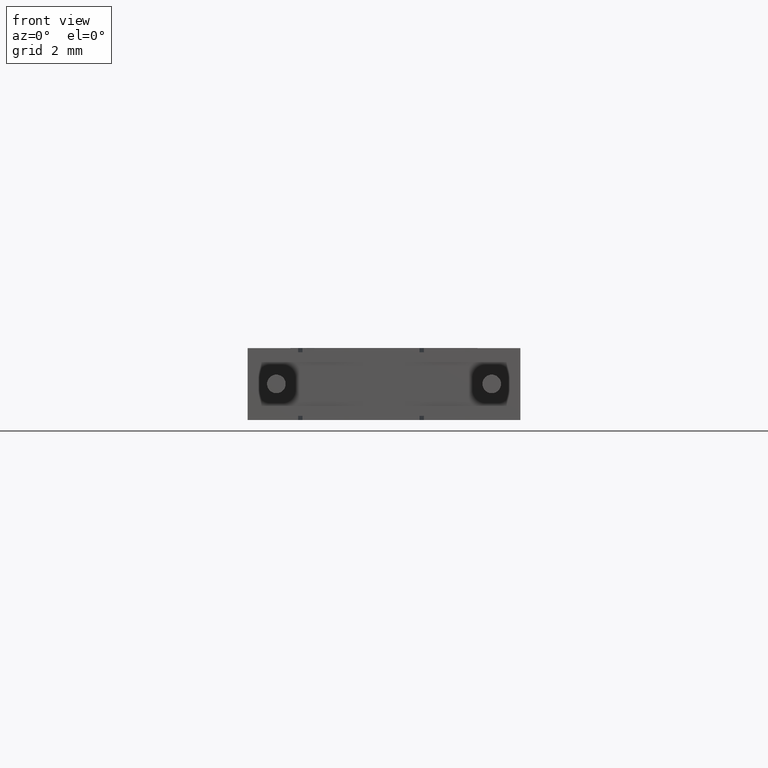
[diagram: clean part render]
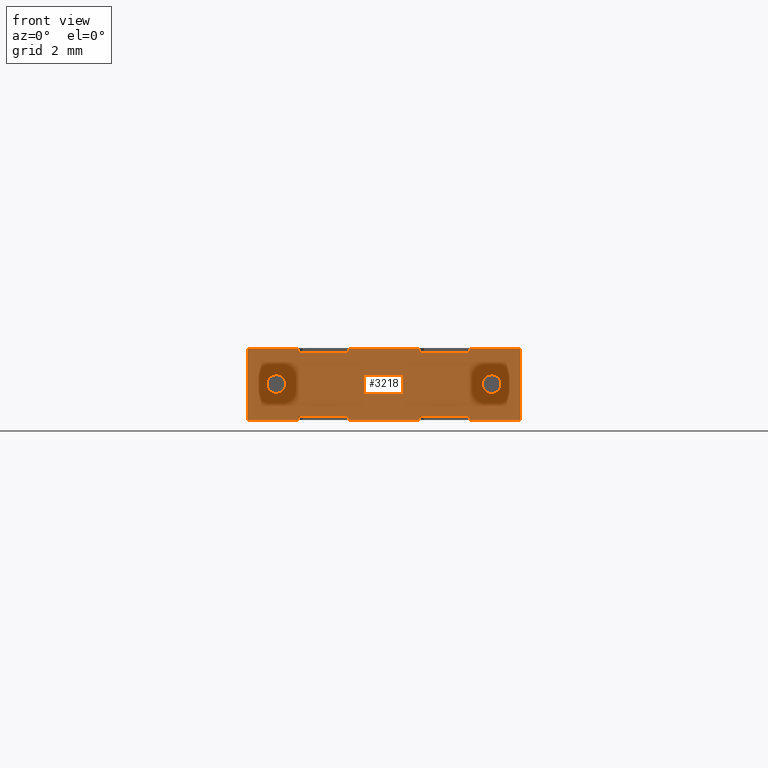
[diagram: same view with one face highlighted and labeled with its STEP entity id]
A machine part, front view. The second image highlights one B-rep face of the part: STEP entity #3218.
In plain terms, the highlighted planar face has unit normal (0, 1, 0).
Its self-contained STEP definition (entity closure, byte-faithful):
#14 = EDGE_CURVE ( 'NONE', #918, #297, #1452, .T. ) ;
#16 = ORIENTED_EDGE ( 'NONE', *, *, #3059, .T. ) ;
#38 = CIRCLE ( 'NONE', #1185, 0.3250000000000000100 ) ;
#48 = VECTOR ( 'NONE', #731, 1000.000000000000000 ) ;
#57 = VERTEX_POINT ( 'NONE', #2644 ) ;
#91 = LINE ( 'NONE', #101, #1014 ) ;
#101 = CARTESIAN_POINT ( 'NONE',  ( 0.0000000000000000000, 0.0000000000000000000, 2.500000000000000000 ) ) ;
#106 = CARTESIAN_POINT ( 'NONE',  ( 7.739999999999999300, 1.077689183249673200E-016, 0.1425000000000000200 ) ) ;
#110 = CARTESIAN_POINT ( 'NONE',  ( 7.739999999999999300, 1.077689183249673200E-016, 2.357500000000000400 ) ) ;
#112 = VECTOR ( 'NONE', #2427, 1000.000000000000000 ) ;
#130 = CARTESIAN_POINT ( 'NONE',  ( 0.0000000000000000000, 0.0000000000000000000, 2.500000000000000000 ) ) ;
#134 = ORIENTED_EDGE ( 'NONE', *, *, #805, .F. ) ;
#136 = VERTEX_POINT ( 'NONE', #2211 ) ;
#193 = CARTESIAN_POINT ( 'NONE',  ( 1.000000000000000000, 0.0000000000000000000, 1.249999999999999800 ) ) ;
#194 = LINE ( 'NONE', #110, #2784 ) ;
#290 = CARTESIAN_POINT ( 'NONE',  ( 1.760000000000000000, 1.077689183249673200E-016, 2.357500000000000400 ) ) ;
#297 = VERTEX_POINT ( 'NONE', #1753 ) ;
#328 = VECTOR ( 'NONE', #996, 1000.000000000000000 ) ;
#413 = ORIENTED_EDGE ( 'NONE', *, *, #1834, .F. ) ;
#423 = CARTESIAN_POINT ( 'NONE',  ( 1.760000000000000000, 1.077689183249673200E-016, 2.357500000000000400 ) ) ;
#427 = EDGE_CURVE ( 'NONE', #508, #1368, #91, .T. ) ;
#436 = LINE ( 'NONE', #1305, #2149 ) ;
#453 = EDGE_CURVE ( 'NONE', #1077, #2058, #2404, .T. ) ;
#454 = EDGE_LOOP ( 'NONE', ( #2478, #1552, #1191, #1332, #2763, #562, #1769, #593, #2771, #1438, #2376, #1691, #3233, #2143, #134, #2106, #2526, #545, #1135, #1202 ) ) ;
#482 = VERTEX_POINT ( 'NONE', #2636 ) ;
#508 = VERTEX_POINT ( 'NONE', #1342 ) ;
#512 = DIRECTION ( 'NONE',  ( 1.000000000000000000, 0.0000000000000000000, 0.0000000000000000000 ) ) ;
#536 = LINE ( 'NONE', #597, #2095 ) ;
#545 = ORIENTED_EDGE ( 'NONE', *, *, #2910, .F. ) ;
#562 = ORIENTED_EDGE ( 'NONE', *, *, #3039, .T. ) ;
#566 = CIRCLE ( 'NONE', #2340, 0.3250000000000000100 ) ;
#572 = CIRCLE ( 'NONE', #2473, 0.3250000000000000100 ) ;
#593 = ORIENTED_EDGE ( 'NONE', *, *, #3180, .T. ) ;
#597 = CARTESIAN_POINT ( 'NONE',  ( 9.500000000000000000, 0.0000000000000000000, 2.500000000000000000 ) ) ;
#602 = EDGE_CURVE ( 'NONE', #2728, #2152, #732, .T. ) ;
#603 = LINE ( 'NONE', #981, #1382 ) ;
#619 = EDGE_CURVE ( 'NONE', #2619, #1559, #1480, .T. ) ;
#622 = DIRECTION ( 'NONE',  ( -0.0000000000000000000, -0.0000000000000000000, -1.000000000000000000 ) ) ;
#677 = FACE_BOUND ( 'NONE', #1675, .T. ) ;
#717 = LINE ( 'NONE', #1453, #2700 ) ;
#721 = CARTESIAN_POINT ( 'NONE',  ( 7.739999999999999300, 1.077689183249673200E-016, 2.357500000000000400 ) ) ;
#731 = DIRECTION ( 'NONE',  ( 0.0000000000000000000, 0.0000000000000000000, 1.000000000000000000 ) ) ;
#732 = LINE ( 'NONE', #2421, #1393 ) ;
#734 = DIRECTION ( 'NONE',  ( 0.0000000000000000000, 0.0000000000000000000, -1.000000000000000000 ) ) ;
#778 = VERTEX_POINT ( 'NONE', #1459 ) ;
#796 = VECTOR ( 'NONE', #1697, 1000.000000000000000 ) ;
#805 = EDGE_CURVE ( 'NONE', #2619, #3005, #2562, .T. ) ;
#818 = CARTESIAN_POINT ( 'NONE',  ( 9.500000000000000000, 0.0000000000000000000, 0.0000000000000000000 ) ) ;
#827 = CARTESIAN_POINT ( 'NONE',  ( 7.739999999999999300, 1.077689183249673200E-016, 2.357500000000000400 ) ) ;
#918 = VERTEX_POINT ( 'NONE', #2008 ) ;
#970 = VERTEX_POINT ( 'NONE', #818 ) ;
#981 = CARTESIAN_POINT ( 'NONE',  ( 5.986499999999999500, 2.151398264402112600E-016, 0.1425000000000000200 ) ) ;
#985 = CARTESIAN_POINT ( 'NONE',  ( 0.0000000000000000000, 0.0000000000000000000, 2.500000000000000000 ) ) ;
#992 = LINE ( 'NONE', #721, #2094 ) ;
#996 = DIRECTION ( 'NONE',  ( 0.0000000000000000000, 0.0000000000000000000, 1.000000000000000000 ) ) ;
#1014 = VECTOR ( 'NONE', #2815, 1000.000000000000000 ) ;
#1017 = EDGE_CURVE ( 'NONE', #3198, #2958, #436, .T. ) ;
#1019 = VERTEX_POINT ( 'NONE', #827 ) ;
#1027 = AXIS2_PLACEMENT_3D ( 'NONE', #1407, #2130, #3160 ) ;
#1035 = VECTOR ( 'NONE', #512, 1000.000000000000000 ) ;
#1077 = VERTEX_POINT ( 'NONE', #3173 ) ;
#1089 = AXIS2_PLACEMENT_3D ( 'NONE', #130, #1862, #2891 ) ;
#1090 = VECTOR ( 'NONE', #1801, 1000.000000000000000 ) ;
#1135 = ORIENTED_EDGE ( 'NONE', *, *, #1017, .T. ) ;
#1161 = DIRECTION ( 'NONE',  ( 1.000000000000000000, 0.0000000000000000000, 0.0000000000000000000 ) ) ;
#1166 = DIRECTION ( 'NONE',  ( 1.000000000000000000, 0.0000000000000000000, 0.0000000000000000000 ) ) ;
#1169 = CARTESIAN_POINT ( 'NONE',  ( 8.500000000000000000, 0.0000000000000000000, 1.249999999999999800 ) ) ;
#1185 = AXIS2_PLACEMENT_3D ( 'NONE', #193, #2223, #2699 ) ;
#1190 = DIRECTION ( 'NONE',  ( 0.0000000000000000000, 0.0000000000000000000, 1.000000000000000000 ) ) ;
#1191 = ORIENTED_EDGE ( 'NONE', *, *, #2138, .T. ) ;
#1194 = DIRECTION ( 'NONE',  ( -0.0000000000000000000, 1.000000000000000000, -0.0000000000000000000 ) ) ;
#1202 = ORIENTED_EDGE ( 'NONE', *, *, #1327, .T. ) ;
#1257 = ORIENTED_EDGE ( 'NONE', *, *, #2401, .T. ) ;
#1296 = LINE ( 'NONE', #985, #2089 ) ;
#1298 = LINE ( 'NONE', #2932, #112 ) ;
#1305 = CARTESIAN_POINT ( 'NONE',  ( 0.0000000000000000000, 0.0000000000000000000, 2.500000000000000000 ) ) ;
#1327 = EDGE_CURVE ( 'NONE', #2958, #136, #3028, .T. ) ;
#1332 = ORIENTED_EDGE ( 'NONE', *, *, #602, .T. ) ;
#1342 = CARTESIAN_POINT ( 'NONE',  ( 7.740000000000000200, 0.0000000000000000000, 2.500000000000000000 ) ) ;
#1368 = VERTEX_POINT ( 'NONE', #1462 ) ;
#1382 = VECTOR ( 'NONE', #2760, 1000.000000000000000 ) ;
#1393 = VECTOR ( 'NONE', #1166, 1000.000000000000000 ) ;
#1406 = CARTESIAN_POINT ( 'NONE',  ( 3.513500000000000100, 2.151398264402112600E-016, 0.0000000000000000000 ) ) ;
#1407 = CARTESIAN_POINT ( 'NONE',  ( 1.000000000000000000, 0.0000000000000000000, 1.249999999999999800 ) ) ;
#1409 = EDGE_LOOP ( 'NONE', ( #413, #2984 ) ) ;
#1418 = LINE ( 'NONE', #3221, #1631 ) ;
#1425 = CARTESIAN_POINT ( 'NONE',  ( 0.0000000000000000000, 0.0000000000000000000, 2.500000000000000000 ) ) ;
#1438 = ORIENTED_EDGE ( 'NONE', *, *, #427, .F. ) ;
#1452 = LINE ( 'NONE', #2631, #3159 ) ;
#1453 = CARTESIAN_POINT ( 'NONE',  ( 1.760000000000000000, 1.077689183249673200E-016, 0.1425000000000000200 ) ) ;
#1459 = CARTESIAN_POINT ( 'NONE',  ( 8.500000000000000000, 0.0000000000000000000, 1.574999999999999700 ) ) ;
#1462 = CARTESIAN_POINT ( 'NONE',  ( 9.500000000000000000, 0.0000000000000000000, 2.500000000000000000 ) ) ;
#1480 = LINE ( 'NONE', #423, #2721 ) ;
#1491 = LINE ( 'NONE', #1519, #328 ) ;
#1515 = DIRECTION ( 'NONE',  ( 1.000000000000000000, 0.0000000000000000000, 0.0000000000000000000 ) ) ;
#1519 = CARTESIAN_POINT ( 'NONE',  ( 1.760000000000000000, 1.077689183249673200E-016, 2.357500000000000400 ) ) ;
#1552 = ORIENTED_EDGE ( 'NONE', *, *, #453, .F. ) ;
#1559 = VERTEX_POINT ( 'NONE', #290 ) ;
#1566 = DIRECTION ( 'NONE',  ( 1.000000000000000000, -6.123233995736752500E-017, 0.0000000000000000000 ) ) ;
#1622 = LINE ( 'NONE', #3229, #796 ) ;
#1631 = VECTOR ( 'NONE', #2244, 1000.000000000000000 ) ;
#1648 = VERTEX_POINT ( 'NONE', #1850 ) ;
#1675 = EDGE_LOOP ( 'NONE', ( #1257, #16 ) ) ;
#1681 = CARTESIAN_POINT ( 'NONE',  ( 0.0000000000000000000, 0.0000000000000000000, 0.0000000000000000000 ) ) ;
#1691 = ORIENTED_EDGE ( 'NONE', *, *, #2122, .F. ) ;
#1697 = DIRECTION ( 'NONE',  ( 1.000000000000000000, 0.0000000000000000000, 0.0000000000000000000 ) ) ;
#1708 = LINE ( 'NONE', #106, #2497 ) ;
#1740 = CARTESIAN_POINT ( 'NONE',  ( 3.513500000000000100, 2.151398264402112600E-016, 2.357500000000000400 ) ) ;
#1743 = CARTESIAN_POINT ( 'NONE',  ( 8.500000000000000000, 0.0000000000000000000, 1.249999999999999800 ) ) ;
#1752 = CARTESIAN_POINT ( 'NONE',  ( 7.739999999999999300, 0.0000000000000000000, 0.1424999999999998200 ) ) ;
#1753 = CARTESIAN_POINT ( 'NONE',  ( 5.986499999999999500, 2.151398264402112600E-016, 2.500000000000000000 ) ) ;
#1765 = CARTESIAN_POINT ( 'NONE',  ( 1.760000000000000000, 0.0000000000000000000, 0.1424999999999998200 ) ) ;
#1769 = ORIENTED_EDGE ( 'NONE', *, *, #3222, .T. ) ;
#1774 = DIRECTION ( 'NONE',  ( 0.0000000000000000000, 0.0000000000000000000, -1.000000000000000000 ) ) ;
#1798 = EDGE_CURVE ( 'NONE', #2451, #1648, #3172, .T. ) ;
#1801 = DIRECTION ( 'NONE',  ( -1.000000000000000000, -6.123233995736752500E-017, 0.0000000000000000000 ) ) ;
#1834 = EDGE_CURVE ( 'NONE', #1648, #2451, #38, .T. ) ;
#1850 = CARTESIAN_POINT ( 'NONE',  ( 1.000000000000000000, 0.0000000000000000000, 1.574999999999999700 ) ) ;
#1862 = DIRECTION ( 'NONE',  ( 0.0000000000000000000, 1.000000000000000000, 0.0000000000000000000 ) ) ;
#1897 = CARTESIAN_POINT ( 'NONE',  ( 8.500000000000000000, 0.0000000000000000000, 0.9249999999999998200 ) ) ;
#1915 = DIRECTION ( 'NONE',  ( -1.000000000000000000, -6.123233995736752500E-017, -0.0000000000000000000 ) ) ;
#1938 = FACE_OUTER_BOUND ( 'NONE', #454, .T. ) ;
#1944 = VERTEX_POINT ( 'NONE', #1752 ) ;
#2008 = CARTESIAN_POINT ( 'NONE',  ( 5.986499999999999500, 2.151398264402112600E-016, 2.357500000000000400 ) ) ;
#2017 = CARTESIAN_POINT ( 'NONE',  ( 0.0000000000000000000, 0.0000000000000000000, 0.0000000000000000000 ) ) ;
#2058 = VERTEX_POINT ( 'NONE', #1765 ) ;
#2089 = VECTOR ( 'NONE', #1515, 1000.000000000000000 ) ;
#2094 = VECTOR ( 'NONE', #1190, 1000.000000000000000 ) ;
#2095 = VECTOR ( 'NONE', #622, 1000.000000000000000 ) ;
#2106 = ORIENTED_EDGE ( 'NONE', *, *, #619, .T. ) ;
#2122 = EDGE_CURVE ( 'NONE', #918, #1019, #194, .T. ) ;
#2130 = DIRECTION ( 'NONE',  ( -0.0000000000000000000, -1.000000000000000000, -0.0000000000000000000 ) ) ;
#2138 = EDGE_CURVE ( 'NONE', #1077, #2728, #1418, .T. ) ;
#2143 = ORIENTED_EDGE ( 'NONE', *, *, #2871, .F. ) ;
#2149 = VECTOR ( 'NONE', #2620, 1000.000000000000000 ) ;
#2152 = VERTEX_POINT ( 'NONE', #3003 ) ;
#2160 = EDGE_CURVE ( 'NONE', #1019, #508, #992, .T. ) ;
#2178 = FACE_BOUND ( 'NONE', #1409, .T. ) ;
#2211 = CARTESIAN_POINT ( 'NONE',  ( 1.760000000000000200, -2.710505431213761100E-017, 0.0000000000000000000 ) ) ;
#2223 = DIRECTION ( 'NONE',  ( -0.0000000000000000000, -1.000000000000000000, -0.0000000000000000000 ) ) ;
#2244 = DIRECTION ( 'NONE',  ( 0.0000000000000000000, 0.0000000000000000000, -1.000000000000000000 ) ) ;
#2274 = DIRECTION ( 'NONE',  ( -0.0000000000000000000, 1.000000000000000000, -0.0000000000000000000 ) ) ;
#2310 = CARTESIAN_POINT ( 'NONE',  ( 1.760000000000000000, 1.077689183249673200E-016, 0.1425000000000000200 ) ) ;
#2340 = AXIS2_PLACEMENT_3D ( 'NONE', #1743, #2274, #1774 ) ;
#2373 = DIRECTION ( 'NONE',  ( 0.0000000000000000000, 0.0000000000000000000, 1.000000000000000000 ) ) ;
#2376 = ORIENTED_EDGE ( 'NONE', *, *, #2160, .F. ) ;
#2401 = EDGE_CURVE ( 'NONE', #778, #2604, #572, .T. ) ;
#2404 = LINE ( 'NONE', #2310, #1090 ) ;
#2421 = CARTESIAN_POINT ( 'NONE',  ( 0.0000000000000000000, 0.0000000000000000000, 0.0000000000000000000 ) ) ;
#2427 = DIRECTION ( 'NONE',  ( 0.0000000000000000000, 0.0000000000000000000, -1.000000000000000000 ) ) ;
#2431 = VERTEX_POINT ( 'NONE', #2789 ) ;
#2451 = VERTEX_POINT ( 'NONE', #3065 ) ;
#2473 = AXIS2_PLACEMENT_3D ( 'NONE', #1169, #1194, #734 ) ;
#2478 = ORIENTED_EDGE ( 'NONE', *, *, #3196, .F. ) ;
#2483 = EDGE_CURVE ( 'NONE', #482, #2152, #603, .T. ) ;
#2497 = VECTOR ( 'NONE', #1566, 1000.000000000000000 ) ;
#2526 = ORIENTED_EDGE ( 'NONE', *, *, #3121, .T. ) ;
#2562 = LINE ( 'NONE', #1740, #48 ) ;
#2598 = EDGE_CURVE ( 'NONE', #1368, #970, #536, .T. ) ;
#2604 = VERTEX_POINT ( 'NONE', #1897 ) ;
#2619 = VERTEX_POINT ( 'NONE', #2898 ) ;
#2620 = DIRECTION ( 'NONE',  ( -0.0000000000000000000, -0.0000000000000000000, -1.000000000000000000 ) ) ;
#2628 = PLANE ( 'NONE',  #1089 ) ;
#2631 = CARTESIAN_POINT ( 'NONE',  ( 5.986499999999999500, 2.151398264402112600E-016, 2.357500000000000400 ) ) ;
#2636 = CARTESIAN_POINT ( 'NONE',  ( 5.986499999999999500, 0.0000000000000000000, 0.1424999999999998200 ) ) ;
#2644 = CARTESIAN_POINT ( 'NONE',  ( 1.760000000000000000, 0.0000000000000000000, 2.500000000000000000 ) ) ;
#2699 = DIRECTION ( 'NONE',  ( 0.0000000000000000000, 0.0000000000000000000, 1.000000000000000000 ) ) ;
#2700 = VECTOR ( 'NONE', #3204, 1000.000000000000000 ) ;
#2721 = VECTOR ( 'NONE', #1915, 1000.000000000000000 ) ;
#2728 = VERTEX_POINT ( 'NONE', #1406 ) ;
#2760 = DIRECTION ( 'NONE',  ( 0.0000000000000000000, 0.0000000000000000000, -1.000000000000000000 ) ) ;
#2763 = ORIENTED_EDGE ( 'NONE', *, *, #2483, .F. ) ;
#2771 = ORIENTED_EDGE ( 'NONE', *, *, #2598, .F. ) ;
#2776 = CARTESIAN_POINT ( 'NONE',  ( 3.513500000000000100, 2.151398264402112600E-016, 2.500000000000000000 ) ) ;
#2784 = VECTOR ( 'NONE', #2939, 1000.000000000000000 ) ;
#2789 = CARTESIAN_POINT ( 'NONE',  ( 7.739999999999999300, 1.077689183249673200E-016, 0.0000000000000000000 ) ) ;
#2815 = DIRECTION ( 'NONE',  ( 1.000000000000000000, 0.0000000000000000000, 0.0000000000000000000 ) ) ;
#2866 = VECTOR ( 'NONE', #1161, 1000.000000000000000 ) ;
#2871 = EDGE_CURVE ( 'NONE', #3005, #297, #1622, .T. ) ;
#2891 = DIRECTION ( 'NONE',  ( 0.0000000000000000000, -0.0000000000000000000, 1.000000000000000000 ) ) ;
#2898 = CARTESIAN_POINT ( 'NONE',  ( 3.513500000000000100, 2.151398264402112600E-016, 2.357500000000000400 ) ) ;
#2910 = EDGE_CURVE ( 'NONE', #3198, #57, #1296, .T. ) ;
#2932 = CARTESIAN_POINT ( 'NONE',  ( 7.739999999999999300, 1.077689183249673200E-016, 0.1425000000000000200 ) ) ;
#2935 = LINE ( 'NONE', #3015, #1035 ) ;
#2939 = DIRECTION ( 'NONE',  ( 1.000000000000000000, -6.123233995736752500E-017, -0.0000000000000000000 ) ) ;
#2958 = VERTEX_POINT ( 'NONE', #2017 ) ;
#2984 = ORIENTED_EDGE ( 'NONE', *, *, #1798, .F. ) ;
#3003 = CARTESIAN_POINT ( 'NONE',  ( 5.986499999999999500, 0.0000000000000000000, 0.0000000000000000000 ) ) ;
#3005 = VERTEX_POINT ( 'NONE', #2776 ) ;
#3015 = CARTESIAN_POINT ( 'NONE',  ( 0.0000000000000000000, 0.0000000000000000000, 0.0000000000000000000 ) ) ;
#3028 = LINE ( 'NONE', #1681, #2866 ) ;
#3039 = EDGE_CURVE ( 'NONE', #482, #1944, #1708, .T. ) ;
#3059 = EDGE_CURVE ( 'NONE', #2604, #778, #566, .T. ) ;
#3065 = CARTESIAN_POINT ( 'NONE',  ( 1.000000000000000000, 0.0000000000000000000, 0.9249999999999998200 ) ) ;
#3121 = EDGE_CURVE ( 'NONE', #1559, #57, #1491, .T. ) ;
#3159 = VECTOR ( 'NONE', #2373, 1000.000000000000000 ) ;
#3160 = DIRECTION ( 'NONE',  ( 0.0000000000000000000, 0.0000000000000000000, 1.000000000000000000 ) ) ;
#3172 = CIRCLE ( 'NONE', #1027, 0.3250000000000000100 ) ;
#3173 = CARTESIAN_POINT ( 'NONE',  ( 3.513500000000000100, 0.0000000000000000000, 0.1424999999999998200 ) ) ;
#3180 = EDGE_CURVE ( 'NONE', #2431, #970, #2935, .T. ) ;
#3196 = EDGE_CURVE ( 'NONE', #2058, #136, #717, .T. ) ;
#3198 = VERTEX_POINT ( 'NONE', #1425 ) ;
#3204 = DIRECTION ( 'NONE',  ( 0.0000000000000000000, 0.0000000000000000000, -1.000000000000000000 ) ) ;
#3218 = ADVANCED_FACE ( 'NONE', ( #677, #1938, #2178 ), #2628, .F. ) ;
#3221 = CARTESIAN_POINT ( 'NONE',  ( 3.513500000000000100, 2.151398264402112600E-016, 0.1425000000000000200 ) ) ;
#3222 = EDGE_CURVE ( 'NONE', #1944, #2431, #1298, .T. ) ;
#3229 = CARTESIAN_POINT ( 'NONE',  ( 0.0000000000000000000, 0.0000000000000000000, 2.500000000000000000 ) ) ;
#3233 = ORIENTED_EDGE ( 'NONE', *, *, #14, .T. ) ;